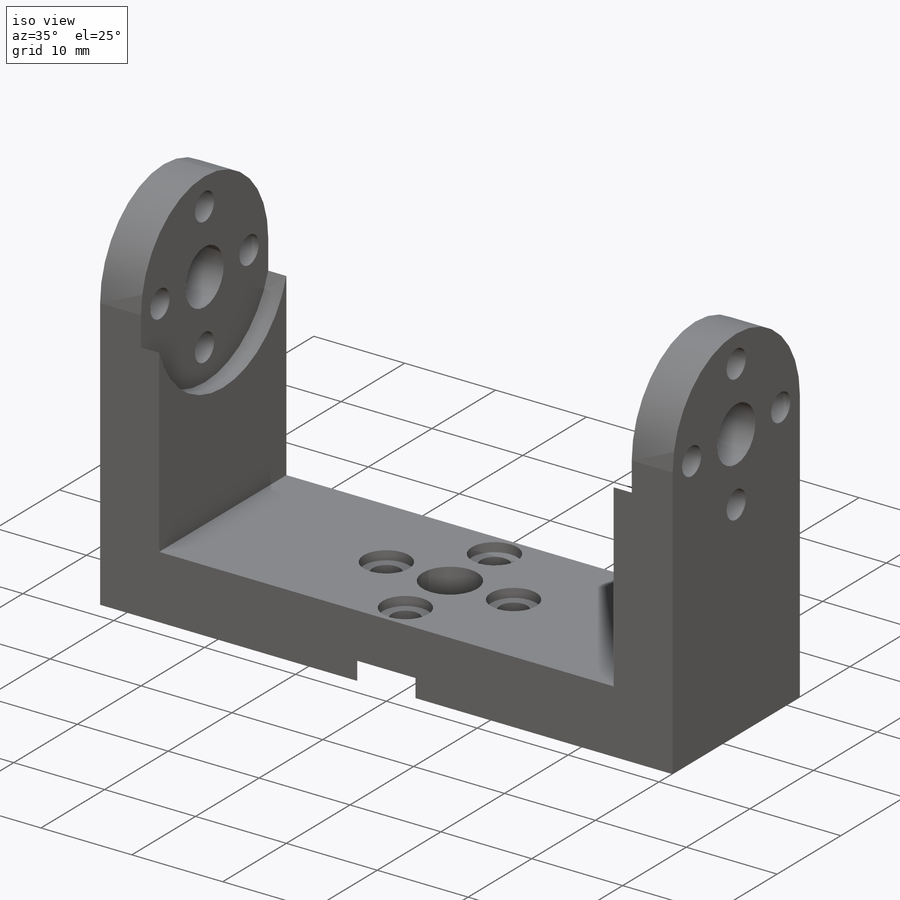
[diagram: iso view]
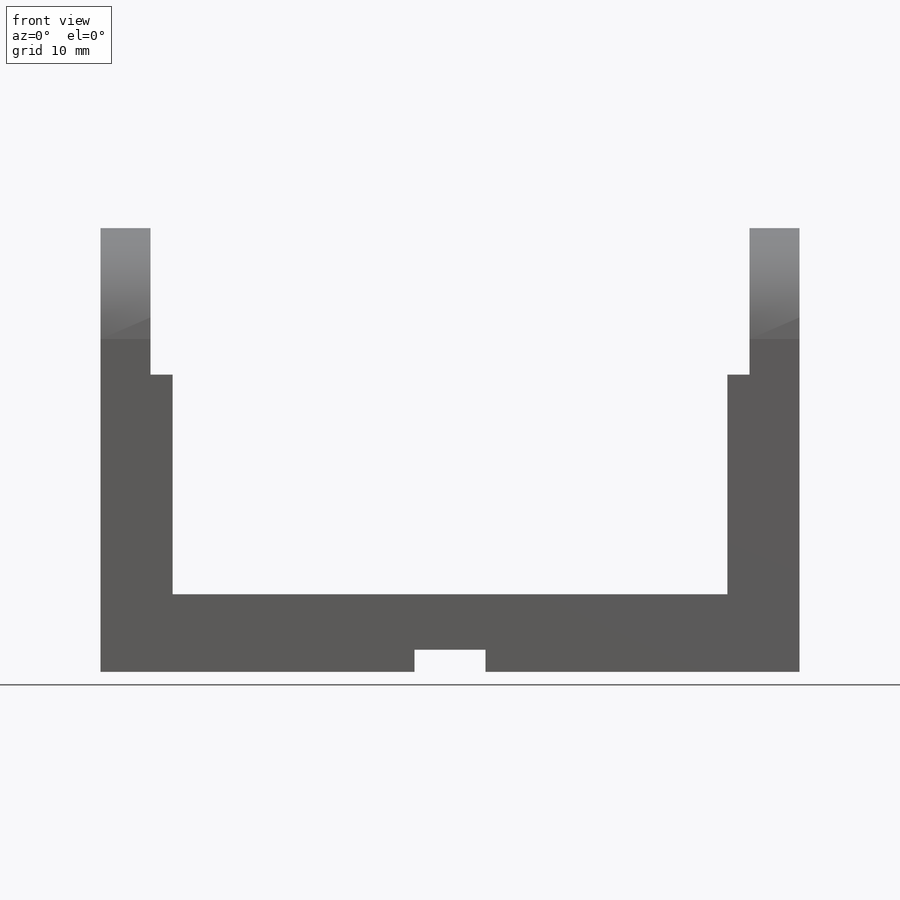
[diagram: front view]
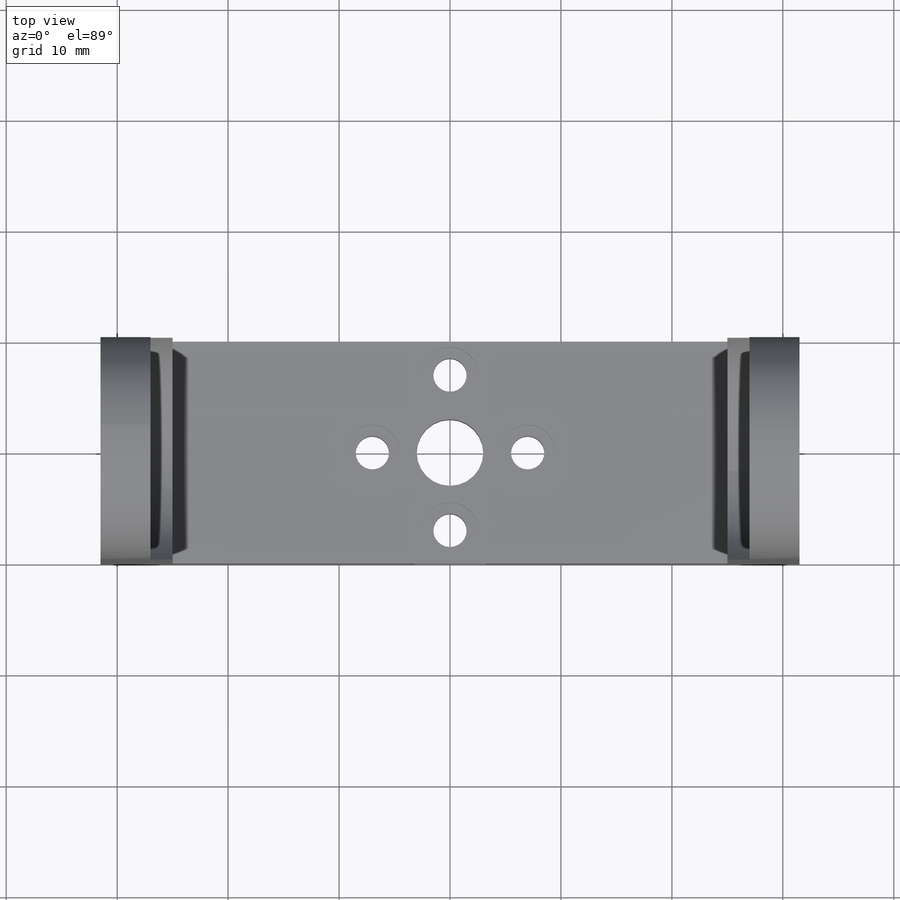
[diagram: top view]
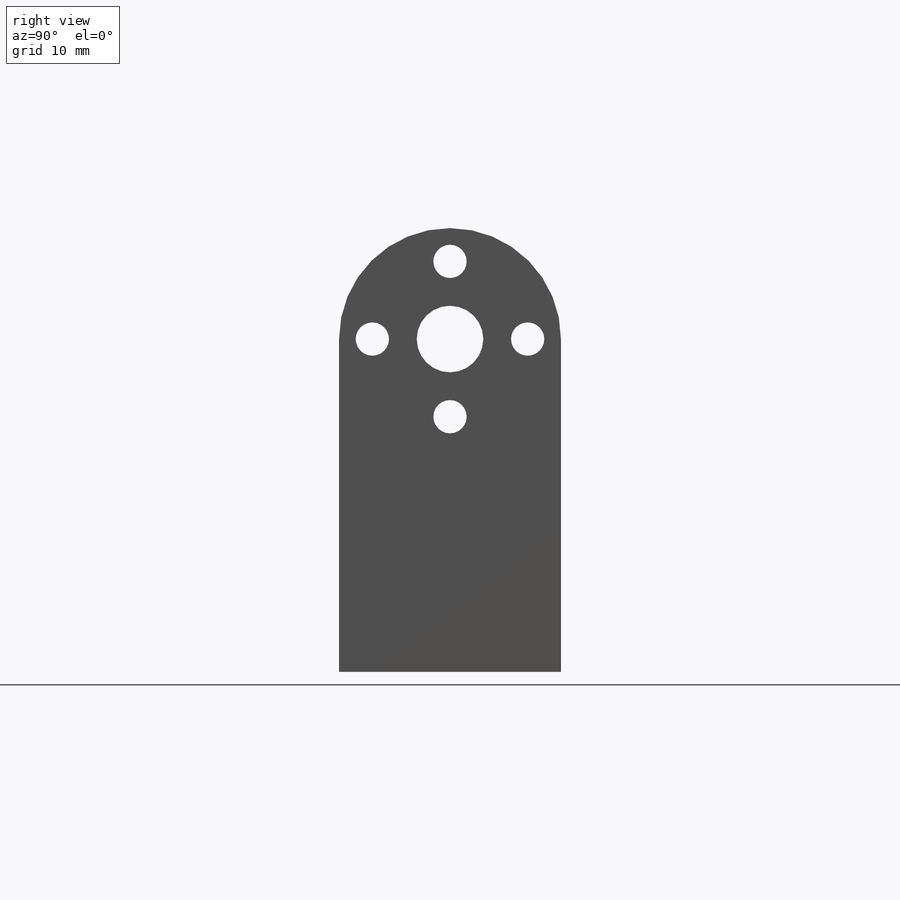
[diagram: right view]
SOLIDWORKS PART (.sldprt)
format: sldprt  version: not decoded by parser v0  size: 451,584 bytes
history: native  units: mm
features: sketch x16, extrude x8, cut_extrude x8, plane x3, material x1 (+10 scaffold rows collapsed)
feature tree (46):
  scaffold x10  (default folders/planes/origin — collapsed)
  material  "Material <sin especificar>"
  plane  "Alzado"
  plane  "Planta"
  plane  "Vista lateral"
  sketch  "Croquis1"  dims[D1=20.0mm]
  extrude  "Saliente-Extruir1"  Depth=5mm
  sketch  "Croquis2"  dims[D1=~17.632455mm]
  cut_extrude  "Cortar-Extruir7"  Depth=2mm
  sketch  "Croquis7"  dims[D1=~1.794769mm]
  cut_extrude  "Cortar-Extruir8"  Depth=4mm
  sketch  "Croquis8"  dims[c1.D1=~11.681652mm c2.D1=4.0]
  cut_extrude  "Cortar-Extruir9"  Depth=1mm
  sketch  "Croquis9"  dims[D1=5.0mm]
  extrude  "Saliente-Extruir3"  Depth=33mm
  sketch  "Croquis10"  dims[D1=10.0mm]
  cut_extrude  "Cortar-Extruir10"  Depth=50mm
  sketch  "Croquis11"  dims[D1=~25.933412mm]
  cut_extrude  "Cortar-Extruir11"  Depth=2mm
  sketch  "Croquis12"  dims[c1.D1=~2.552818mm c2.D1=4.0]
  cut_extrude  "Cortar-Extruir12"  Depth=6mm
  sketch  "Croquis13"  dims[D1=0.0mm]
  extrude  "Saliente-Extruir4"  Depth=5mm
  sketch  "Croquis14"  dims[D1=0.0mm]
  extrude  "Saliente-Extruir5"  Depth=5mm
  sketch  "Croquis15"  dims[D1=0.0mm]
  cut_extrude  "Cortar-Extruir14"  Depth=5mm
  sketch  "Croquis16"  dims[D1=0.0mm]
  cut_extrude  "Cortar-Extruir15"  Depth=5mm
  sketch  "Croquis17"  dims[D1=0.0mm D2=0.0mm]
  extrude  "Saliente-Extruir6"  Depth=2mm
  sketch  "Croquis18"  dims[D1=0.0mm]
  extrude  "Saliente-Extruir7"  Depth=2mm
  sketch  "Croquis19"  dims[D1=0.0mm]
  extrude  "Saliente-Extruir8"  Depth=1.5mm
  sketch  "Croquis20"  dims[D1=0.0mm]
  extrude  "Saliente-Extruir9"  Depth=1.5mm
decode coverage: 32 of 32 modeling features carry decoded parameters
note: ~ marks probable driven/reference dimensions
note: suppression state not decoded; provenance and decode notes live in map.json
